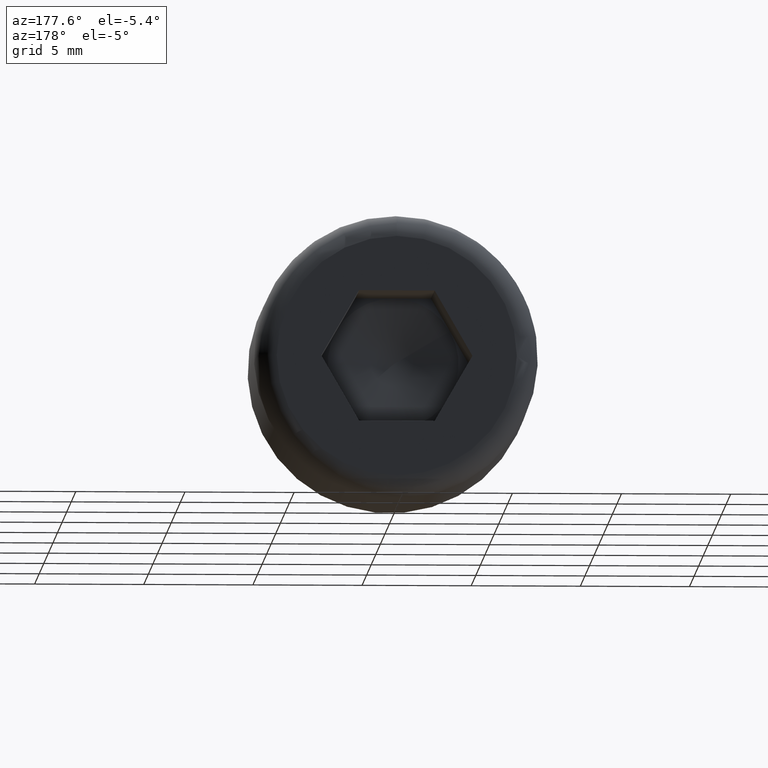
[diagram: clean part render]
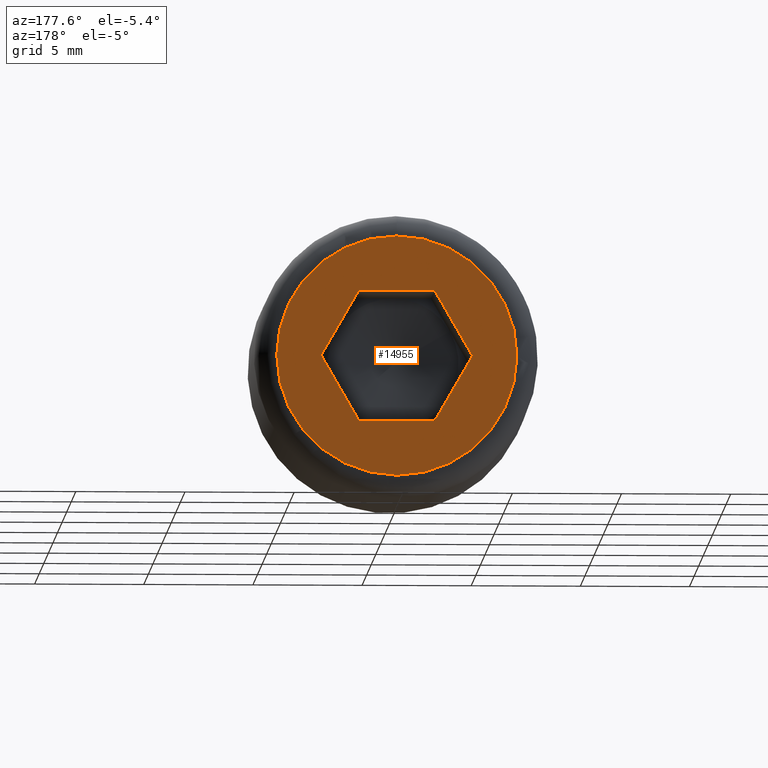
[diagram: same view with one face highlighted and labeled with its STEP entity id]
A machine part, auxiliary view. The second image highlights one B-rep face of the part: STEP entity #14955.
In plain terms, the highlighted planar face has unit normal (0, 1, 0).
Its self-contained STEP definition (entity closure, byte-faithful):
#251 = DIRECTION ( 'NONE',  ( 1.000000000000000000, 0.0000000000000000000, 0.0000000000000000000 ) ) ;
#309 = CARTESIAN_POINT ( 'NONE',  ( -1.732050807568876100, 8.000000000000000000, 3.000000000000000000 ) ) ;
#373 = DIRECTION ( 'NONE',  ( 0.0000000000000000000, -0.0000000000000000000, 1.000000000000000000 ) ) ;
#632 = DIRECTION ( 'NONE',  ( -1.000000000000000000, 0.0000000000000000000, 1.251928832280966200E-016 ) ) ;
#846 = CIRCLE ( 'NONE', #4561, 5.500000000000000900 ) ;
#1564 = VECTOR ( 'NONE', #632, 1000.000000000000000 ) ;
#2383 = CARTESIAN_POINT ( 'NONE',  ( -3.464101615137754400, 8.000000000000000000, -4.440650973077132600E-016 ) ) ;
#2445 = FACE_OUTER_BOUND ( 'NONE', #15948, .T. ) ;
#2507 = DIRECTION ( 'NONE',  ( 0.0000000000000000000, 0.0000000000000000000, 1.000000000000000000 ) ) ;
#2559 = CARTESIAN_POINT ( 'NONE',  ( -1.732050807568877400, 8.000000000000000000, -2.999999999999999600 ) ) ;
#2732 = CARTESIAN_POINT ( 'NONE',  ( 3.464101615137755300, 8.000000000000000000, 8.032070669435346800E-016 ) ) ;
#2823 = VERTEX_POINT ( 'NONE', #11059 ) ;
#3209 = EDGE_CURVE ( 'NONE', #3957, #9763, #9342, .T. ) ;
#3418 = CARTESIAN_POINT ( 'NONE',  ( -3.464101615137754400, 8.000000000000000000, -4.440650973077132600E-016 ) ) ;
#3957 = VERTEX_POINT ( 'NONE', #6752 ) ;
#4446 = VECTOR ( 'NONE', #251, 1000.000000000000000 ) ;
#4556 = FACE_BOUND ( 'NONE', #17191, .T. ) ;
#4561 = AXIS2_PLACEMENT_3D ( 'NONE', #16977, #6592, #2507 ) ;
#4672 = ORIENTED_EDGE ( 'NONE', *, *, #16212, .F. ) ;
#4824 = CARTESIAN_POINT ( 'NONE',  ( 1.732050807568876300, 8.000000000000000000, -3.000000000000000000 ) ) ;
#5100 = LINE ( 'NONE', #4824, #1564 ) ;
#5825 = CARTESIAN_POINT ( 'NONE',  ( 1.732050807568877900, 8.000000000000000000, 3.000000000000000000 ) ) ;
#5900 = VERTEX_POINT ( 'NONE', #5825 ) ;
#6511 = VECTOR ( 'NONE', #11714, 1000.000000000000200 ) ;
#6592 = DIRECTION ( 'NONE',  ( 0.0000000000000000000, 1.000000000000000000, 0.0000000000000000000 ) ) ;
#6752 = CARTESIAN_POINT ( 'NONE',  ( -1.732050807568877400, 8.000000000000000000, -2.999999999999999600 ) ) ;
#6798 = CARTESIAN_POINT ( 'NONE',  ( -1.732050807568876100, 8.000000000000000000, 3.000000000000000000 ) ) ;
#7011 = PLANE ( 'NONE',  #17259 ) ;
#7311 = EDGE_CURVE ( 'NONE', #8690, #10530, #13036, .T. ) ;
#7789 = EDGE_CURVE ( 'NONE', #10530, #3957, #5100, .T. ) ;
#8145 = ORIENTED_EDGE ( 'NONE', *, *, #9979, .F. ) ;
#8355 = DIRECTION ( 'NONE',  ( 0.0000000000000000000, 1.000000000000000000, 0.0000000000000000000 ) ) ;
#8649 = ORIENTED_EDGE ( 'NONE', *, *, #13098, .T. ) ;
#8690 = VERTEX_POINT ( 'NONE', #2732 ) ;
#8846 = ORIENTED_EDGE ( 'NONE', *, *, #3209, .F. ) ;
#9092 = VECTOR ( 'NONE', #9947, 1000.000000000000200 ) ;
#9342 = LINE ( 'NONE', #2559, #17232 ) ;
#9763 = VERTEX_POINT ( 'NONE', #3418 ) ;
#9947 = DIRECTION ( 'NONE',  ( 0.5000000000000001100, 0.0000000000000000000, -0.8660254037844384900 ) ) ;
#9979 = EDGE_CURVE ( 'NONE', #14598, #5900, #15888, .T. ) ;
#10233 = CARTESIAN_POINT ( 'NONE',  ( 3.464101615137755300, 8.000000000000000000, 8.032070669435346800E-016 ) ) ;
#10388 = ORIENTED_EDGE ( 'NONE', *, *, #7311, .F. ) ;
#10530 = VERTEX_POINT ( 'NONE', #15081 ) ;
#10698 = ORIENTED_EDGE ( 'NONE', *, *, #7789, .F. ) ;
#11059 = CARTESIAN_POINT ( 'NONE',  ( 0.0000000000000000000, 8.000000000000000000, 5.500000000000000900 ) ) ;
#11353 = EDGE_CURVE ( 'NONE', #9763, #14598, #12591, .T. ) ;
#11701 = DIRECTION ( 'NONE',  ( -0.5000000000000000000, 0.0000000000000000000, 0.8660254037844386000 ) ) ;
#11714 = DIRECTION ( 'NONE',  ( 0.5000000000000001100, 0.0000000000000000000, 0.8660254037844384900 ) ) ;
#12591 = LINE ( 'NONE', #2383, #6511 ) ;
#12934 = ORIENTED_EDGE ( 'NONE', *, *, #11353, .F. ) ;
#13036 = LINE ( 'NONE', #10233, #16951 ) ;
#13098 = EDGE_CURVE ( 'NONE', #2823, #2823, #846, .T. ) ;
#14131 = CARTESIAN_POINT ( 'NONE',  ( 1.732050807568877600, 8.000000000000000000, 3.000000000000000000 ) ) ;
#14356 = DIRECTION ( 'NONE',  ( -0.5000000000000002200, 0.0000000000000000000, -0.8660254037844384900 ) ) ;
#14493 = LINE ( 'NONE', #14131, #9092 ) ;
#14598 = VERTEX_POINT ( 'NONE', #6798 ) ;
#14955 = ADVANCED_FACE ( 'NONE', ( #4556, #2445 ), #7011, .T. ) ;
#15081 = CARTESIAN_POINT ( 'NONE',  ( 1.732050807568876300, 8.000000000000000000, -3.000000000000000000 ) ) ;
#15888 = LINE ( 'NONE', #309, #4446 ) ;
#15948 = EDGE_LOOP ( 'NONE', ( #8649 ) ) ;
#16212 = EDGE_CURVE ( 'NONE', #5900, #8690, #14493, .T. ) ;
#16320 = CARTESIAN_POINT ( 'NONE',  ( 0.0000000000000000000, 8.000000000000000000, 0.0000000000000000000 ) ) ;
#16951 = VECTOR ( 'NONE', #14356, 1000.000000000000200 ) ;
#16977 = CARTESIAN_POINT ( 'NONE',  ( 0.0000000000000000000, 8.000000000000000000, 0.0000000000000000000 ) ) ;
#17191 = EDGE_LOOP ( 'NONE', ( #8145, #12934, #8846, #10698, #10388, #4672 ) ) ;
#17232 = VECTOR ( 'NONE', #11701, 1000.000000000000200 ) ;
#17259 = AXIS2_PLACEMENT_3D ( 'NONE', #16320, #8355, #373 ) ;